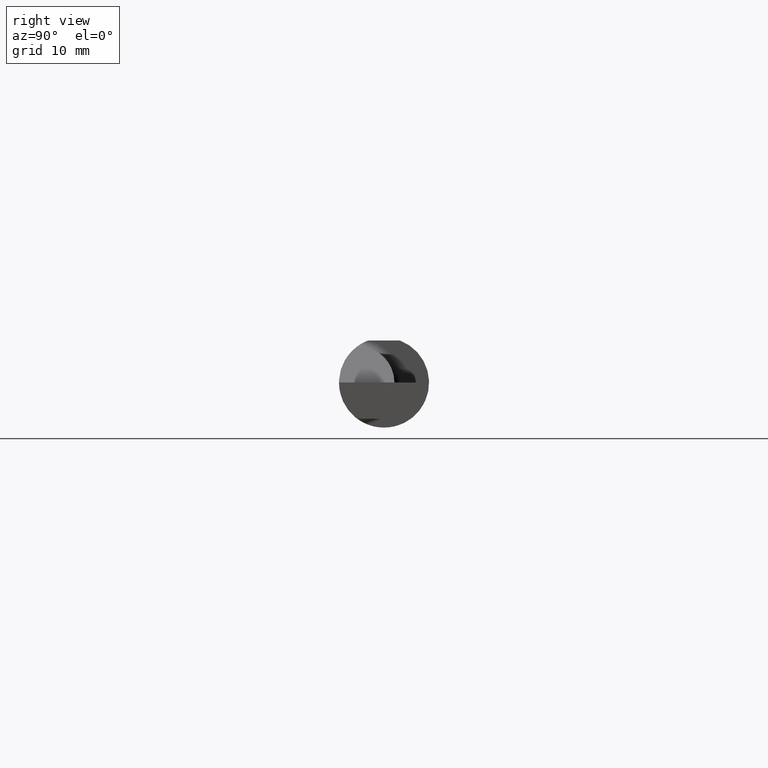
[diagram: clean part render]
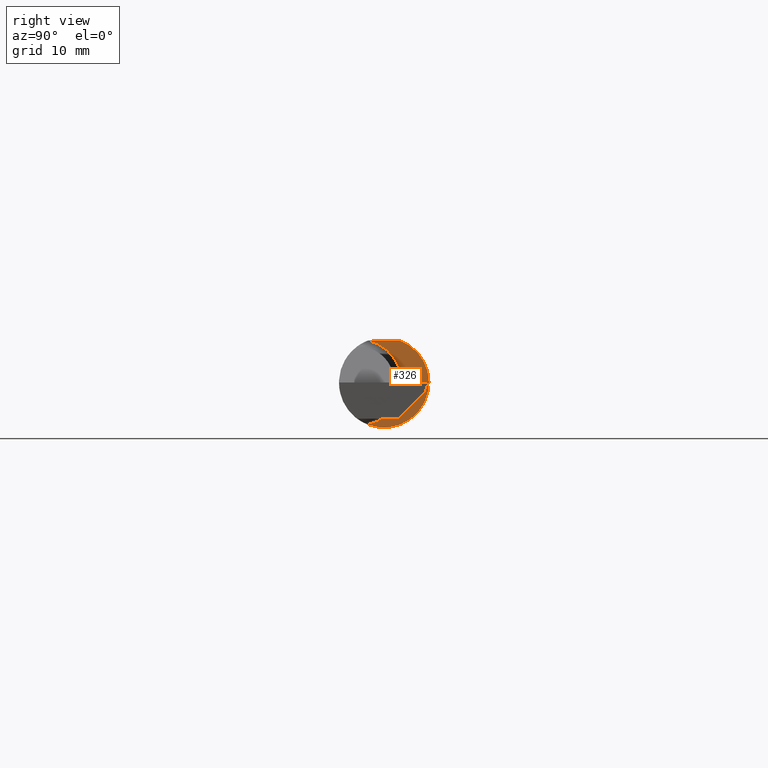
[diagram: same view with one face highlighted and labeled with its STEP entity id]
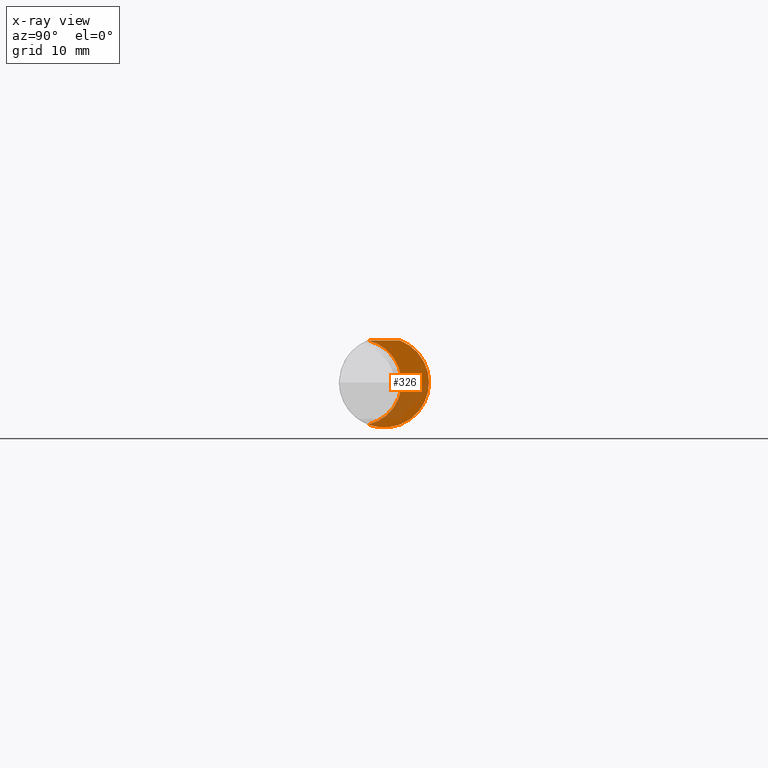
[diagram: x-ray of the same camera — body ghosted, the highlighted face saturated]
A machine part, right view. The second image highlights one B-rep face of the part: STEP entity #326.
The next image is the same camera in x-ray: the body ghosted, the highlighted face saturated — about 30% of this face is hidden behind the body in this view.
In plain terms, the highlighted planar face has unit normal (1, 0, 0).
Its self-contained STEP definition (entity closure, byte-faithful):
#1 = CIRCLE ( 'NONE', #1076, 0.1499999999999999944 ) ;
#21 = CARTESIAN_POINT ( 'NONE',  ( 1.699999999999999956, 0.000000000000000000, 0.000000000000000000 ) ) ;
#24 = DIRECTION ( 'NONE',  ( 0.000000000000000000, 0.000000000000000000, -1.000000000000000000 ) ) ;
#47 = DIRECTION ( 'NONE',  ( 0.000000000000000000, 0.000000000000000000, -1.000000000000000000 ) ) ;
#57 = EDGE_CURVE ( 'NONE', #647, #483, #1, .T. ) ;
#67 = DIRECTION ( 'NONE',  ( 0.000000000000000000, 0.000000000000000000, 1.000000000000000000 ) ) ;
#81 = ORIENTED_EDGE ( 'NONE', *, *, #508, .T. ) ;
#106 = DIRECTION ( 'NONE',  ( 0.000000000000000000, 0.000000000000000000, -1.000000000000000000 ) ) ;
#123 = LINE ( 'NONE', #961, #318 ) ;
#163 = CARTESIAN_POINT ( 'NONE',  ( 1.699999999999999734, -0.08909999999999998477, 0.000000000000000000 ) ) ;
#203 = DIRECTION ( 'NONE',  ( 1.000000000000000000, 0.000000000000000000, 0.000000000000000000 ) ) ;
#211 = DIRECTION ( 'NONE',  ( 1.000000000000000000, 0.000000000000000000, 0.000000000000000000 ) ) ;
#280 = DIRECTION ( 'NONE',  ( -0.000000000000000000, 1.000000000000000000, 0.000000000000000000 ) ) ;
#318 = VECTOR ( 'NONE', #280, 39.37007874015748143 ) ;
#324 = VERTEX_POINT ( 'NONE', #925 ) ;
#326 = ADVANCED_FACE ( 'NONE', ( #774 ), #423, .T. ) ;
#351 = AXIS2_PLACEMENT_3D ( 'NONE', #877, #203, #24 ) ;
#362 = CARTESIAN_POINT ( 'NONE',  ( 1.699999999999999734, -0.05502817059483720158, -0.1460791239054557156 ) ) ;
#423 = PLANE ( 'NONE',  #564 ) ;
#434 = EDGE_CURVE ( 'NONE', #1026, #324, #123, .T. ) ;
#483 = VERTEX_POINT ( 'NONE', #362 ) ;
#506 = DIRECTION ( 'NONE',  ( -1.000000000000000000, -0.000000000000000000, -0.000000000000000000 ) ) ;
#508 = EDGE_CURVE ( 'NONE', #483, #324, #700, .T. ) ;
#564 = AXIS2_PLACEMENT_3D ( 'NONE', #1002, #920, #47 ) ;
#574 = ORIENTED_EDGE ( 'NONE', *, *, #873, .T. ) ;
#601 = CIRCLE ( 'NONE', #902, 0.1560999999999999888 ) ;
#612 = ORIENTED_EDGE ( 'NONE', *, *, #57, .T. ) ;
#647 = VERTEX_POINT ( 'NONE', #717 ) ;
#700 = CIRCLE ( 'NONE', #351, 0.1560999999999999888 ) ;
#717 = CARTESIAN_POINT ( 'NONE',  ( 1.699999999999999734, -0.05502817059483720158, 0.1460791239054557156 ) ) ;
#774 = FACE_OUTER_BOUND ( 'NONE', #882, .T. ) ;
#873 = EDGE_CURVE ( 'NONE', #1026, #647, #601, .T. ) ;
#877 = CARTESIAN_POINT ( 'NONE',  ( 1.699999999999999956, 0.000000000000000000, 0.000000000000000000 ) ) ;
#882 = EDGE_LOOP ( 'NONE', ( #81, #1090, #574, #612 ) ) ;
#902 = AXIS2_PLACEMENT_3D ( 'NONE', #21, #211, #106 ) ;
#920 = DIRECTION ( 'NONE',  ( 1.000000000000000000, 0.000000000000000000, 0.000000000000000000 ) ) ;
#925 = CARTESIAN_POINT ( 'NONE',  ( 1.699999999999999956, 0.05497272050753900657, 0.1460999999999999799 ) ) ;
#961 = CARTESIAN_POINT ( 'NONE',  ( 1.699999999999999956, -0.1561000000000000165, 0.1460999999999999799 ) ) ;
#999 = CARTESIAN_POINT ( 'NONE',  ( 1.699999999999999956, -0.05497272050753899270, 0.1460999999999999799 ) ) ;
#1002 = CARTESIAN_POINT ( 'NONE',  ( 1.699999999999999956, 0.2358999999999999708, 0.000000000000000000 ) ) ;
#1026 = VERTEX_POINT ( 'NONE', #999 ) ;
#1076 = AXIS2_PLACEMENT_3D ( 'NONE', #163, #506, #67 ) ;
#1090 = ORIENTED_EDGE ( 'NONE', *, *, #434, .F. ) ;